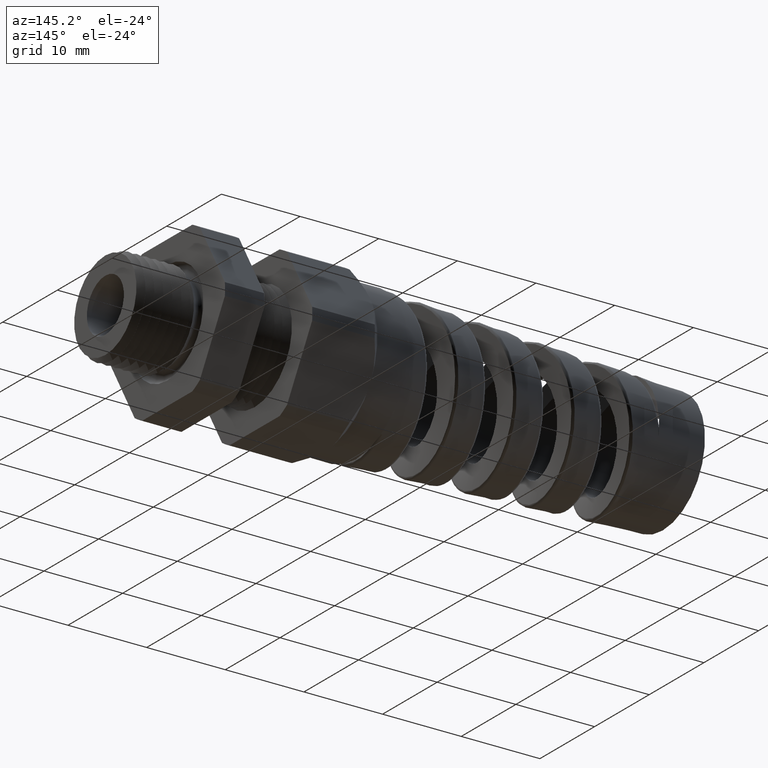
[diagram: clean part render]
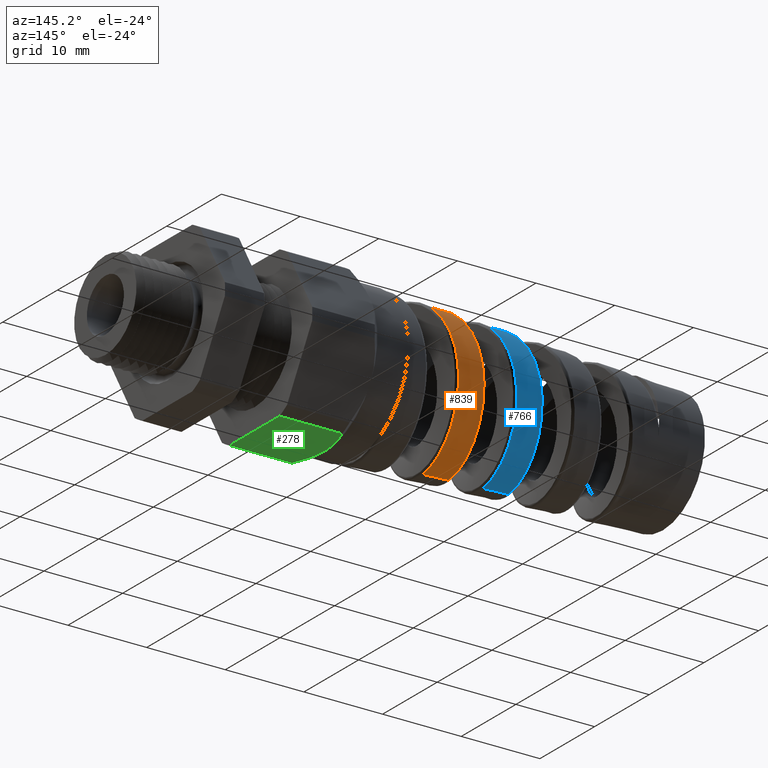
[diagram: same view with three faces highlighted in distinct colors, each labeled with its STEP entity id]
A machine part, auxiliary view with three faces highlighted in distinct colors.
Their STEP definitions:

[orange] entity #839 — the highlighted conical surface has half-angle 2.5 deg.
#724 = ORIENTED_EDGE ( 'NONE', *, *, #725, .F. ) ;
#725 = EDGE_CURVE ( 'NONE', #758, #765, #3755, .T. ) ;
#757 = EDGE_CURVE ( 'NONE', #758, #759, #4062, .T. ) ;
#758 = VERTEX_POINT ( 'NONE', #4063 ) ;
#759 = VERTEX_POINT ( 'NONE', #4061 ) ;
#760 = ORIENTED_EDGE ( 'NONE', *, *, #761, .T. ) ;
#761 = EDGE_CURVE ( 'NONE', #759, #762, #4090, .T. ) ;
#762 = VERTEX_POINT ( 'NONE', #4086 ) ;
#763 = ORIENTED_EDGE ( 'NONE', *, *, #764, .T. ) ;
#764 = EDGE_CURVE ( 'NONE', #762, #765, #4084, .T. ) ;
#765 = VERTEX_POINT ( 'NONE', #4085 ) ;
#839 = ADVANCED_FACE ( 'NONE', ( #4864 ), #4863, .T. ) ;
#2425 = EDGE_LOOP ( 'NONE', ( #2433, #760, #763, #724 ) ) ;
#2433 = ORIENTED_EDGE ( 'NONE', *, *, #757, .T. ) ;
#3752 = DIRECTION ( 'NONE',  ( 0.9990482215818576900, 0.0000000000000000000, -0.04361938736533633300 ) ) ;
#3753 = VECTOR ( 'NONE', #3752, 39.37007874015748100 ) ;
#3754 = CARTESIAN_POINT ( 'NONE',  ( -1.180000000000000200, 0.0000000000000000000, -0.3749999999999998900 ) ) ;
#3755 = LINE ( 'NONE', #3754, #3753 ) ;
#4024 = CARTESIAN_POINT ( 'NONE',  ( -1.604147893780293500, 0.2338172558347930400, 0.2693404331094431100 ) ) ;
#4025 = CARTESIAN_POINT ( 'NONE',  ( -1.605721216048483700, 0.2425195046639780900, 0.2614367780492804500 ) ) ;
#4026 = CARTESIAN_POINT ( 'NONE',  ( -1.610392708829689400, 0.2671403516514382300, 0.2367708489926975100 ) ) ;
#4027 = CARTESIAN_POINT ( 'NONE',  ( -1.613476527588962700, 0.2817921087589174700, 0.2189054725787847300 ) ) ;
#4028 = CARTESIAN_POINT ( 'NONE',  ( -1.619699037266636900, 0.3075780309592522900, 0.1803572852362077300 ) ) ;
#4029 = CARTESIAN_POINT ( 'NONE',  ( -1.622854178591123500, 0.3187187214157414200, 0.1595339356799256300 ) ) ;
#4030 = CARTESIAN_POINT ( 'NONE',  ( -1.629071130742905500, 0.3364525652290325500, 0.1167876846685824000 ) ) ;
#4031 = CARTESIAN_POINT ( 'NONE',  ( -1.632164444724165900, 0.3432037702774299300, 0.09467427533722602700 ) ) ;
#4032 = CARTESIAN_POINT ( 'NONE',  ( -1.636868573642309000, 0.3500755290649887300, 0.06037774012640090300 ) ) ;
#4033 = CARTESIAN_POINT ( 'NONE',  ( -1.638447458985908600, 0.3518113751857160900, 0.04875535143475849500 ) ) ;
#4034 = CARTESIAN_POINT ( 'NONE',  ( -1.641572646514079900, 0.3541100399417093100, 0.02564277945374624300 ) ) ;
#4035 = CARTESIAN_POINT ( 'NONE',  ( -1.644682859707485600, 0.3552653384320944600, 0.002534627666650163700 ) ) ;
#4036 = CARTESIAN_POINT ( 'NONE',  ( -1.647793175832474600, 0.3541690054110135400, -0.02056081550544203200 ) ) ;
#4037 = CARTESIAN_POINT ( 'NONE',  ( -1.650918321443378000, 0.3519326016737611100, -0.04364782446324842100 ) ) ;
#4038 = CARTESIAN_POINT ( 'NONE',  ( -1.652495516895215600, 0.3502334056776490500, -0.05523960647628437000 ) ) ;
#4039 = CARTESIAN_POINT ( 'NONE',  ( -1.657219973263941700, 0.3434330805194905100, -0.08962050805081689400 ) ) ;
#4040 = CARTESIAN_POINT ( 'NONE',  ( -1.660324942667615900, 0.3367204747142228900, -0.1117596298250717700 ) ) ;
#4041 = CARTESIAN_POINT ( 'NONE',  ( -1.665005324710368000, 0.3234829986014105000, -0.1438192937010352200 ) ) ;
#4042 = CARTESIAN_POINT ( 'NONE',  ( -1.666569213791856000, 0.3185386575106921600, -0.1543129962118505700 ) ) ;
#4043 = CARTESIAN_POINT ( 'NONE',  ( -1.669720118696005300, 0.3075571257400741000, -0.1749019068166757800 ) ) ;
#4044 = CARTESIAN_POINT ( 'NONE',  ( -1.671304139590971300, 0.3015238728173140200, -0.1849732283598679900 ) ) ;
#4045 = CARTESIAN_POINT ( 'NONE',  ( -1.676009269265843500, 0.2821813670299173600, -0.2139259612820533000 ) ) ;
#4046 = CARTESIAN_POINT ( 'NONE',  ( -1.679117299167546700, 0.2675260900090148400, -0.2317850491694549400 ) ) ;
#4047 = CARTESIAN_POINT ( 'NONE',  ( -1.683825790574334300, 0.2429092140344732700, -0.2563991360274479000 ) ) ;
#4048 = CARTESIAN_POINT ( 'NONE',  ( -1.685411440288008700, 0.2342124388088229800, -0.2642775364565413400 ) ) ;
#4049 = CARTESIAN_POINT ( 'NONE',  ( -1.688570329350134600, 0.2161543224802713000, -0.2790664033881412600 ) ) ;
#4050 = CARTESIAN_POINT ( 'NONE',  ( -1.690139146020161100, 0.2068234628638122300, -0.2859614697338894200 ) ) ;
#4051 = CARTESIAN_POINT ( 'NONE',  ( -1.694837000180716700, 0.1779524039044960400, -0.3051872133115012300 ) ) ;
#4052 = CARTESIAN_POINT ( 'NONE',  ( -1.697956518764234500, 0.1575419747460493900, -0.3160724069036295900 ) ) ;
#4053 = CARTESIAN_POINT ( 'NONE',  ( -1.702707313402982900, 0.1251366926315660700, -0.3294034699245522200 ) ) ;
#4054 = CARTESIAN_POINT ( 'NONE',  ( -1.704294449409094800, 0.1140907247310741600, -0.3333142832549930200 ) ) ;
#4055 = CARTESIAN_POINT ( 'NONE',  ( -1.707440761081074200, 0.09187106767978173200, -0.3399677803163271800 ) ) ;
#4056 = CARTESIAN_POINT ( 'NONE',  ( -1.710574065489524700, 0.06942184339197458900, -0.3454964340501229800 ) ) ;
#4057 = CARTESIAN_POINT ( 'NONE',  ( -1.713712007224771300, 0.04652281420144591100, -0.3488004104802778200 ) ) ;
#4058 = CARTESIAN_POINT ( 'NONE',  ( -1.716867252393302200, 0.02339703866211573600, -0.3509726424273854600 ) ) ;
#4059 = CARTESIAN_POINT ( 'NONE',  ( -1.718462336193793400, 0.01165469891359113300, -0.3514902266810592800 ) ) ;
#4060 = CARTESIAN_POINT ( 'NONE',  ( -1.720046289923344600, 5.261405270794163700E-017, -0.3514210697677028200 ) ) ;
#4061 = CARTESIAN_POINT ( 'NONE',  ( -1.570004112519413100, 7.800708568290530000E-013, 0.3579720527092047400 ) ) ;
#4062 = B_SPLINE_CURVE_WITH_KNOTS ( 'NONE', 3,
 ( #4060, #4059, #4058, #4057, #4056, #4055, #4054, #4053, #4052, #4051, #4050, #4049, #4048, #4047, #4046, #4045, #4044, #4043, #4042, #4041, #4040, #4039, #4038, #4037, #4036, #4035, #4034, #4033, #4032, #4031, #4030, #4029, #4028, #4027, #4026, #4025, #4024, #4102, #4101, #4100, #4099, #4098, #4097, #4096, #4095, #4094, #4093, #4092, #4091 ),
 .UNSPECIFIED., .F., .F.,
 ( 4, 2, 1, 2, 2, 2, 2, 2, 2, 2, 2, 2, 2, 1, 2, 2, 2, 2, 2, 2, 2, 2, 2, 1, 2, 4 ),
 ( 0.1504759072502974400, 0.1513760892187639400, 0.1522762711872304400, 0.1531764531556969500, 0.1540766351241634500, 0.1558769990610964200, 0.1567771810295629200, 0.1576773629980294200, 0.1594777269349624300, 0.1603779089034289000, 0.1612780908718954000, 0.1630784548088284000, 0.1639786367772948800, 0.1648788187457613800, 0.1657790007142278800, 0.1666791826826943800, 0.1684795466196273600, 0.1702799105565603600, 0.1720802744934933600, 0.1729804564619598600, 0.1738806384304263700, 0.1756810023673593400, 0.1765811843358258700, 0.1774813663042923400, 0.1783815482727588400, 0.1792817302412253500 ),
 .UNSPECIFIED. ) ;
#4063 = CARTESIAN_POINT ( 'NONE',  ( -1.720046289923344600, 5.261405270794163700E-017, -0.3514210697677028200 ) ) ;
#4065 = CARTESIAN_POINT ( 'NONE',  ( -1.497440788334635500, 0.3419403546582955900, 0.1185490441899818800 ) ) ;
#4066 = CARTESIAN_POINT ( 'NONE',  ( -1.491217231977695300, 0.3238952573567211400, 0.1620656680095650700 ) ) ;
#4067 = CARTESIAN_POINT ( 'NONE',  ( -1.488062759736407800, 0.3125670429981283700, 0.1832301605975566500 ) ) ;
#4068 = CARTESIAN_POINT ( 'NONE',  ( -1.481853649059393400, 0.2864160791439732100, 0.2223361875655257600 ) ) ;
#4069 = CARTESIAN_POINT ( 'NONE',  ( -1.478769385462156900, 0.2715287160771441300, 0.2405091759068495000 ) ) ;
#4070 = CARTESIAN_POINT ( 'NONE',  ( -1.474087033771445600, 0.2464348408856798800, 0.2656498454025513800 ) ) ;
#4071 = CARTESIAN_POINT ( 'NONE',  ( -1.472514153371623100, 0.2375860485180825200, 0.2736820288598511000 ) ) ;
#4072 = CARTESIAN_POINT ( 'NONE',  ( -1.469402776941181300, 0.2193413100916917500, 0.2886811490979059900 ) ) ;
#4073 = CARTESIAN_POINT ( 'NONE',  ( -1.467855771100278000, 0.2099016159167325600, 0.2956958584193908900 ) ) ;
#4074 = CARTESIAN_POINT ( 'NONE',  ( -1.463218403051158600, 0.1806501942844020200, 0.3153101385052023400 ) ) ;
#4075 = CARTESIAN_POINT ( 'NONE',  ( -1.460120873452529300, 0.1598368339697834900, 0.3265258404606378700 ) ) ;
#4076 = CARTESIAN_POINT ( 'NONE',  ( -1.453867363587885400, 0.1159625879989283300, 0.3448445848721811100 ) ) ;
#4077 = CARTESIAN_POINT ( 'NONE',  ( -1.450790426804472500, 0.09347047862549987000, 0.3517281581911576000 ) ) ;
#4078 = CARTESIAN_POINT ( 'NONE',  ( -1.446161247252001100, 0.05894068186143738800, 0.3587594865962086000 ) ) ;
#4079 = CARTESIAN_POINT ( 'NONE',  ( -1.444615957833764700, 0.04729786568232322700, 0.3605503712581145700 ) ) ;
#4080 = CARTESIAN_POINT ( 'NONE',  ( -1.441506045452874300, 0.02374203397426115700, 0.3629995748980564000 ) ) ;
#4081 = CARTESIAN_POINT ( 'NONE',  ( -1.439938880628758500, 0.01180939826937906300, 0.3636508233731851100 ) ) ;
#4082 = CARTESIAN_POINT ( 'NONE',  ( -1.438388834159843900, -6.242012121605520200E-013, 0.3637184998635499300 ) ) ;
#4084 = B_SPLINE_CURVE_WITH_KNOTS ( 'NONE', 3,
 ( #4082, #4081, #4080, #4079, #4078, #4077, #4076, #4075, #4074, #4073, #4072, #4071, #4070, #4069, #4068, #4067, #4066, #4065, #4139, #4138, #4137, #4136, #4135, #4134, #4133, #4132, #4131, #4130, #4129, #4128, #4127, #4126, #4125, #4124, #4123, #4122, #4121, #4120, #4119, #4118, #4117, #4116, #4115, #4114 ),
 .UNSPECIFIED., .F., .F.,
 ( 4, 2, 2, 2, 2, 2, 2, 2, 2, 2, 2, 2, 2, 2, 2, 2, 2, 2, 2, 2, 2, 4 ),
 ( 0.03422901946826646000, 0.03513469259537486300, 0.03604036572248327200, 0.03785171197670007800, 0.03966305823091688400, 0.04056873135802528700, 0.04147440448513369000, 0.04328575073935050900, 0.04509709699356732200, 0.04690844324778413500, 0.04781411637489253700, 0.04871978950200094700, 0.05053113575621776000, 0.05234248201043456600, 0.05324815513754297500, 0.05415382826465137800, 0.05596517451886818400, 0.05777652077308499000, 0.05958786702730180200, 0.06049354015441020500, 0.06139921328151860800, 0.06321055953573541400 ),
 .UNSPECIFIED. ) ;
#4085 = CARTESIAN_POINT ( 'NONE',  ( -1.588346511975844600, -2.085652025635772500E-015, -0.3571712062537323900 ) ) ;
#4086 = CARTESIAN_POINT ( 'NONE',  ( -1.438388834159843900, -6.242012121605520200E-013, 0.3637184998635499300 ) ) ;
#4087 = DIRECTION ( 'NONE',  ( 0.9990482215818576900, 5.341834311772764100E-018, 0.04361938736533633300 ) ) ;
#4088 = VECTOR ( 'NONE', #4087, 39.37007874015748100 ) ;
#4089 = CARTESIAN_POINT ( 'NONE',  ( -1.180000000000000200, 4.592425496802573000E-017, 0.3749999999999998900 ) ) ;
#4090 = LINE ( 'NONE', #4089, #4088 ) ;
#4091 = CARTESIAN_POINT ( 'NONE',  ( -1.570004112519413100, 7.800708568290530000E-013, 0.3579720527092047400 ) ) ;
#4092 = CARTESIAN_POINT ( 'NONE',  ( -1.571559338679266100, 0.01165663843734122300, 0.3579041500686050400 ) ) ;
#4093 = CARTESIAN_POINT ( 'NONE',  ( -1.573126315279760800, 0.02339468312784817600, 0.3572591004366506000 ) ) ;
#4094 = CARTESIAN_POINT ( 'NONE',  ( -1.576227774028205600, 0.04650505937238288300, 0.3548545658279131400 ) ) ;
#4095 = CARTESIAN_POINT ( 'NONE',  ( -1.579313976895375700, 0.06937930689968885300, 0.3513393868235398200 ) ) ;
#4096 = CARTESIAN_POINT ( 'NONE',  ( -1.582399133055027100, 0.09178512056537238600, 0.3456396033915942700 ) ) ;
#4097 = CARTESIAN_POINT ( 'NONE',  ( -1.585498230953778000, 0.1139521376532170300, 0.3388354243744096100 ) ) ;
#4098 = CARTESIAN_POINT ( 'NONE',  ( -1.587060504874283200, 0.1249559212781043600, 0.3348643115576440700 ) ) ;
#4099 = CARTESIAN_POINT ( 'NONE',  ( -1.591751491076328900, 0.1573223665262857300, 0.3213434215824619300 ) ) ;
#4100 = CARTESIAN_POINT ( 'NONE',  ( -1.594832988440560300, 0.1776967954526449100, 0.3103664786667592600 ) ) ;
#4101 = CARTESIAN_POINT ( 'NONE',  ( -1.599474924126295100, 0.2065023079533514800, 0.2910581303585755800 ) ) ;
#4102 = CARTESIAN_POINT ( 'NONE',  ( -1.601025405380726200, 0.2158094113502530600, 0.2841448457145627800 ) ) ;
#4114 = CARTESIAN_POINT ( 'NONE',  ( -1.588346511975844600, -2.085652025635772500E-015, -0.3571712062537323900 ) ) ;
#4115 = CARTESIAN_POINT ( 'NONE',  ( -1.585169181315703600, 0.02377166712461402400, -0.3573099315062864300 ) ) ;
#4116 = CARTESIAN_POINT ( 'NONE',  ( -1.582028668462522200, 0.04729785536105812800, -0.3550809733742521000 ) ) ;
#4117 = CARTESIAN_POINT ( 'NONE',  ( -1.577328279619481900, 0.08186630961105467700, -0.3483544939175768400 ) ) ;
#4118 = CARTESIAN_POINT ( 'NONE',  ( -1.575760720703284400, 0.09328825189997848300, -0.3455444800079025000 ) ) ;
#4119 = CARTESIAN_POINT ( 'NONE',  ( -1.572608544978106400, 0.1159245629934294900, -0.3387678619265835900 ) ) ;
#4120 = CARTESIAN_POINT ( 'NONE',  ( -1.571015949933437100, 0.1271930102533077000, -0.3347749287901653500 ) ) ;
#4121 = CARTESIAN_POINT ( 'NONE',  ( -1.566283233025535400, 0.1600146907585137100, -0.3212715836482453200 ) ) ;
#4122 = CARTESIAN_POINT ( 'NONE',  ( -1.563168722711705300, 0.1807434547613579200, -0.3102310593030121500 ) ) ;
#4123 = CARTESIAN_POINT ( 'NONE',  ( -1.556901118047824900, 0.2199220663174416000, -0.2841512754313991800 ) ) ;
#4124 = CARTESIAN_POINT ( 'NONE',  ( -1.553721162009381800, 0.2384963666016795300, -0.2689366455550846200 ) ) ;
#4125 = CARTESIAN_POINT ( 'NONE',  ( -1.547458914128967900, 0.2717888858843948200, -0.2356574877859848000 ) ) ;
#4126 = CARTESIAN_POINT ( 'NONE',  ( -1.544351127692614700, 0.2866970856463352800, -0.2175117369082662200 ) ) ;
#4127 = CARTESIAN_POINT ( 'NONE',  ( -1.539636867151503900, 0.3064088959745048800, -0.1880118146451330900 ) ) ;
#4128 = CARTESIAN_POINT ( 'NONE',  ( -1.538050642368709000, 0.3125510389929414500, -0.1777534886742070700 ) ) ;
#4129 = CARTESIAN_POINT ( 'NONE',  ( -1.534911843621319400, 0.3236764084854391000, -0.1568966332655909700 ) ) ;
#4130 = CARTESIAN_POINT ( 'NONE',  ( -1.533351937879140500, 0.3286939452352635200, -0.1462544825224101600 ) ) ;
#4131 = CARTESIAN_POINT ( 'NONE',  ( -1.528677631559787200, 0.3421433471800954800, -0.1137027203410202100 ) ) ;
#4132 = CARTESIAN_POINT ( 'NONE',  ( -1.525562895256547400, 0.3489960631327122000, -0.09113051746796957400 ) ) ;
#4133 = CARTESIAN_POINT ( 'NONE',  ( -1.519254090160249100, 0.3582258164783068100, -0.04444815125261744600 ) ) ;
#4134 = CARTESIAN_POINT ( 'NONE',  ( -1.516152231120669900, 0.3604751305930762900, -0.02102835590693004700 ) ) ;
#4135 = CARTESIAN_POINT ( 'NONE',  ( -1.511487405751688100, 0.3604384368302846500, 0.01420299083478664600 ) ) ;
#4136 = CARTESIAN_POINT ( 'NONE',  ( -1.509930555254504100, 0.3598536451725704600, 0.02596385295872231900 ) ) ;
#4137 = CARTESIAN_POINT ( 'NONE',  ( -1.506797787402672800, 0.3575127249512332600, 0.04951850025917333600 ) ) ;
#4138 = CARTESIAN_POINT ( 'NONE',  ( -1.505217933007637000, 0.3557443106118515800, 0.06134039084634913100 ) ) ;
#4139 = CARTESIAN_POINT ( 'NONE',  ( -1.500529897932170600, 0.3487838961025361800, 0.09608735467626373900 ) ) ;
#4858 = DIRECTION ( 'NONE',  ( 0.0000000000000000000, 0.0000000000000000000, -1.000000000000000000 ) ) ;
#4859 = DIRECTION ( 'NONE',  ( 1.000000000000000000, 0.0000000000000000000, 0.0000000000000000000 ) ) ;
#4860 = CARTESIAN_POINT ( 'NONE',  ( -1.180000000000000200, 0.0000000000000000000, 0.0000000000000000000 ) ) ;
#4861 = AXIS2_PLACEMENT_3D ( 'NONE', #4860, #4859, #4858 ) ;
#4863 = CONICAL_SURFACE ( 'NONE', #4861, 0.3749999999999998900, 0.04363323129985857000 ) ;
#4864 = FACE_OUTER_BOUND ( 'NONE', #2425, .T. ) ;

[blue] entity #766 — the highlighted conical surface has half-angle 2.5 deg.
#766 = ADVANCED_FACE ( 'NONE', ( #4083 ), #4113, .T. ) ;
#767 = ORIENTED_EDGE ( 'NONE', *, *, #768, .T. ) ;
#768 = EDGE_CURVE ( 'NONE', #793, #794, #4106, .T. ) ;
#773 = EDGE_LOOP ( 'NONE', ( #767, #819, #822, #837 ) ) ;
#793 = VERTEX_POINT ( 'NONE', #4387 ) ;
#794 = VERTEX_POINT ( 'NONE', #4459 ) ;
#819 = ORIENTED_EDGE ( 'NONE', *, *, #820, .T. ) ;
#820 = EDGE_CURVE ( 'NONE', #794, #821, #4685, .T. ) ;
#821 = VERTEX_POINT ( 'NONE', #4681 ) ;
#822 = ORIENTED_EDGE ( 'NONE', *, *, #835, .T. ) ;
#835 = EDGE_CURVE ( 'NONE', #821, #836, #4742, .T. ) ;
#836 = VERTEX_POINT ( 'NONE', #4743 ) ;
#837 = ORIENTED_EDGE ( 'NONE', *, *, #838, .F. ) ;
#838 = EDGE_CURVE ( 'NONE', #793, #836, #4783, .T. ) ;
#4083 = FACE_OUTER_BOUND ( 'NONE', #773, .T. ) ;
#4103 = CARTESIAN_POINT ( 'NONE',  ( -2.013855819544707600, 0.04446832936202906700, -0.3364096283747499100 ) ) ;
#4104 = CARTESIAN_POINT ( 'NONE',  ( -2.016982179081261400, 0.02229813155987315700, -0.3384565688637354300 ) ) ;
#4105 = CARTESIAN_POINT ( 'NONE',  ( -2.020129990126204000, -6.806968735707664300E-013, -0.3383191324653706500 ) ) ;
#4106 = B_SPLINE_CURVE_WITH_KNOTS ( 'NONE', 3,
 ( #4105, #4104, #4103, #4188, #4187, #4186, #4185, #4184, #4183, #4182, #4181, #4180, #4179, #4178, #4177, #4176, #4175, #4174, #4173, #4172, #4171, #4170, #4169, #4168, #4167, #4166, #4165, #4164, #4163, #4162, #4161, #4160, #4159, #4158, #4157, #4156, #4155, #4154, #4153, #4152, #4151, #4150, #4149, #4148, #4147, #4146, #4145, #4144, #4143, #4142, #4141, #4140 ),
 .UNSPECIFIED., .F., .F.,
 ( 4, 2, 2, 2, 2, 2, 2, 2, 2, 2, 2, 2, 2, 2, 2, 2, 2, 2, 2, 2, 2, 2, 2, 2, 2, 4 ),
 ( 0.09444105053058422800, 0.09617593787425353400, 0.09704338154608818700, 0.09791082521792283900, 0.09877826888975749200, 0.09964571256159214500, 0.1013805999052614500, 0.1022480435770961000, 0.1031154872489307600, 0.1048503745926000800, 0.1057178182644347300, 0.1065852619362693800, 0.1083201492799387000, 0.1091875929517733500, 0.1100550366236080100, 0.1109224802954426600, 0.1117899239672773100, 0.1135248113109466300, 0.1143922549827812900, 0.1152596986546159400, 0.1169945859982852400, 0.1178620296701199100, 0.1187294733419545600, 0.1204643606856238800, 0.1213318043574585500, 0.1221992480292932000 ),
 .UNSPECIFIED. ) ;
#4109 = DIRECTION ( 'NONE',  ( 0.0000000000000000000, 0.0000000000000000000, -1.000000000000000000 ) ) ;
#4110 = DIRECTION ( 'NONE',  ( 1.000000000000000000, 0.0000000000000000000, 0.0000000000000000000 ) ) ;
#4111 = CARTESIAN_POINT ( 'NONE',  ( -1.180000000000000200, 0.0000000000000000000, 0.0000000000000000000 ) ) ;
#4112 = AXIS2_PLACEMENT_3D ( 'NONE', #4111, #4110, #4109 ) ;
#4113 = CONICAL_SURFACE ( 'NONE', #4112, 0.3749999999999998900, 0.04363323129985857000 ) ;
#4140 = CARTESIAN_POINT ( 'NONE',  ( -1.870088254621574200, 1.372455858012838600E-016, 0.3448700961131323500 ) ) ;
#4141 = CARTESIAN_POINT ( 'NONE',  ( -1.871629383344239200, 0.01112822930955137700, 0.3448028089799572400 ) ) ;
#4142 = CARTESIAN_POINT ( 'NONE',  ( -1.873170796155300600, 0.02225220639051467300, 0.3441981300261857700 ) ) ;
#4143 = CARTESIAN_POINT ( 'NONE',  ( -1.876268349415466400, 0.04448956854802550700, 0.3418990559768271300 ) ) ;
#4144 = CARTESIAN_POINT ( 'NONE',  ( -1.877832308297816600, 0.05565821495901147900, 0.3401925524395933400 ) ) ;
#4145 = CARTESIAN_POINT ( 'NONE',  ( -1.882510542633464100, 0.08872499830948756000, 0.3334599624527548900 ) ) ;
#4146 = CARTESIAN_POINT ( 'NONE',  ( -1.885587573730803200, 0.1100206110728644400, 0.3268957925425811100 ) ) ;
#4147 = CARTESIAN_POINT ( 'NONE',  ( -1.890226864814565700, 0.1408604870689656700, 0.3140256179597536400 ) ) ;
#4148 = CARTESIAN_POINT ( 'NONE',  ( -1.891776918703717200, 0.1509552953087822900, 0.3092280651536134500 ) ) ;
#4149 = CARTESIAN_POINT ( 'NONE',  ( -1.894899632818215900, 0.1707621732032996700, 0.2985900447869097600 ) ) ;
#4150 = CARTESIAN_POINT ( 'NONE',  ( -1.896468818300314000, 0.1804489654147048400, 0.2927549464441148700 ) ) ;
#4151 = CARTESIAN_POINT ( 'NONE',  ( -1.901130221618127800, 0.2083043940781415000, 0.2740652538169889900 ) ) ;
#4152 = CARTESIAN_POINT ( 'NONE',  ( -1.904210038392670800, 0.2254937176863075800, 0.2599274501383169700 ) ) ;
#4153 = CARTESIAN_POINT ( 'NONE',  ( -1.908875923336268200, 0.2491969348690165900, 0.2362117159492128600 ) ) ;
#4154 = CARTESIAN_POINT ( 'NONE',  ( -1.910446777474284600, 0.2567842049826133400, 0.2278409182691867300 ) ) ;
#4155 = CARTESIAN_POINT ( 'NONE',  ( -1.913578740339856100, 0.2710496254373897000, 0.2104468934991906000 ) ) ;
#4156 = CARTESIAN_POINT ( 'NONE',  ( -1.915133972751450000, 0.2777043976072398100, 0.2014623853617416600 ) ) ;
#4157 = CARTESIAN_POINT ( 'NONE',  ( -1.919789714298783200, 0.2962728365143572100, 0.1736726912281495200 ) ) ;
#4158 = CARTESIAN_POINT ( 'NONE',  ( -1.922879712126769800, 0.3068036162747040400, 0.1540390114997546600 ) ) ;
#4159 = CARTESIAN_POINT ( 'NONE',  ( -1.927583869936822000, 0.3197412636970924900, 0.1228907661033862600 ) ) ;
#4160 = CARTESIAN_POINT ( 'NONE',  ( -1.929159385594097200, 0.3235558035712659500, 0.1122485645958305100 ) ) ;
#4161 = CARTESIAN_POINT ( 'NONE',  ( -1.932280070739770300, 0.3300603842653001000, 0.09085694182701084500 ) ) ;
#4162 = CARTESIAN_POINT ( 'NONE',  ( -1.933833384801542300, 0.3327744737939975500, 0.08005255841376217300 ) ) ;
#4163 = CARTESIAN_POINT ( 'NONE',  ( -1.936940854223744300, 0.3371402368795071200, 0.05823157463501123200 ) ) ;
#4164 = CARTESIAN_POINT ( 'NONE',  ( -1.938494951634066600, 0.3387919167872417400, 0.04721496724638361100 ) ) ;
#4165 = CARTESIAN_POINT ( 'NONE',  ( -1.941618523350367100, 0.3410169512185451400, 0.02496843580670459600 ) ) ;
#4166 = CARTESIAN_POINT ( 'NONE',  ( -1.943196330555655000, 0.3415892794406694100, 0.01367872988418971500 ) ) ;
#4167 = CARTESIAN_POINT ( 'NONE',  ( -1.947911455534967500, 0.3416239085071003400, -0.02005019732475371600 ) ) ;
#4168 = CARTESIAN_POINT ( 'NONE',  ( -1.951013459388146100, 0.3394473788540212600, -0.04222232285441612100 ) ) ;
#4169 = CARTESIAN_POINT ( 'NONE',  ( -1.955691914639906800, 0.3329700208547266000, -0.07500995422553122200 ) ) ;
#4170 = CARTESIAN_POINT ( 'NONE',  ( -1.957255455334293100, 0.3302717110645923000, -0.08586021797826283400 ) ) ;
#4171 = CARTESIAN_POINT ( 'NONE',  ( -1.960406307370184300, 0.3237648222295275200, -0.1073959920505350600 ) ) ;
#4172 = CARTESIAN_POINT ( 'NONE',  ( -1.961986563051783400, 0.3199646724507819200, -0.1180316191719489500 ) ) ;
#4173 = CARTESIAN_POINT ( 'NONE',  ( -1.966684092625106400, 0.3071484836630650700, -0.1490083093129386500 ) ) ;
#4174 = CARTESIAN_POINT ( 'NONE',  ( -1.969789512684549500, 0.2966686725327154500, -0.1686411870626466900 ) ) ;
#4175 = CARTESIAN_POINT ( 'NONE',  ( -1.974497747871218500, 0.2780405295247769200, -0.1965462798035270100 ) ) ;
#4176 = CARTESIAN_POINT ( 'NONE',  ( -1.976084168417382200, 0.2713016080325054700, -0.2056365607058287200 ) ) ;
#4177 = CARTESIAN_POINT ( 'NONE',  ( -1.979238563416602800, 0.2570398515824050500, -0.2229972473912390500 ) ) ;
#4178 = CARTESIAN_POINT ( 'NONE',  ( -1.980805479885231900, 0.2495287184070458000, -0.2312659615977234500 ) ) ;
#4179 = CARTESIAN_POINT ( 'NONE',  ( -1.985498079107943700, 0.2258856919333886700, -0.2548663642071565800 ) ) ;
#4180 = CARTESIAN_POINT ( 'NONE',  ( -1.988615191295253200, 0.2086546924920540900, -0.2690038485360569100 ) ) ;
#4181 = CARTESIAN_POINT ( 'NONE',  ( -1.993366454561087400, 0.1805375707863327800, -0.2877235224643547300 ) ) ;
#4182 = CARTESIAN_POINT ( 'NONE',  ( -1.994950636878070900, 0.1708546019413308100, -0.2934932860252752500 ) ) ;
#4183 = CARTESIAN_POINT ( 'NONE',  ( -1.998094145462152100, 0.1511293758671576300, -0.3039677041136230100 ) ) ;
#4184 = CARTESIAN_POINT ( 'NONE',  ( -1.999659591356263800, 0.1410502357799552400, -0.3086972795466905200 ) ) ;
#4185 = CARTESIAN_POINT ( 'NONE',  ( -2.002793283384356900, 0.1204652726415915600, -0.3171505857474119000 ) ) ;
#4186 = CARTESIAN_POINT ( 'NONE',  ( -2.004361366648077500, 0.1099594392497147400, -0.3208743511260212500 ) ) ;
#4187 = CARTESIAN_POINT ( 'NONE',  ( -2.007515299714150100, 0.08851518747806169700, -0.3272967198754571600 ) ) ;
#4188 = CARTESIAN_POINT ( 'NONE',  ( -2.009109829080315100, 0.07751563821956043700, -0.3300043313486809000 ) ) ;
#4387 = CARTESIAN_POINT ( 'NONE',  ( -2.020129990126204000, -6.806968735707664300E-013, -0.3383191324653706500 ) ) ;
#4459 = CARTESIAN_POINT ( 'NONE',  ( -1.870088254621574200, 1.372455858012838600E-016, 0.3448700961131323500 ) ) ;
#4681 = CARTESIAN_POINT ( 'NONE',  ( -1.738304391068078900, -4.833561772024687300E-013, 0.3506239038560047300 ) ) ;
#4682 = DIRECTION ( 'NONE',  ( 0.9990482215818576900, 5.341834311772764100E-018, 0.04361938736533633300 ) ) ;
#4683 = VECTOR ( 'NONE', #4682, 39.37007874015748100 ) ;
#4684 = CARTESIAN_POINT ( 'NONE',  ( -1.180000000000000200, 4.592425496802573000E-017, 0.3749999999999998900 ) ) ;
#4685 = LINE ( 'NONE', #4684, #4683 ) ;
#4739 = CARTESIAN_POINT ( 'NONE',  ( -1.744466423409643900, 0.04523232728382748500, 0.3481667798925049400 ) ) ;
#4740 = CARTESIAN_POINT ( 'NONE',  ( -1.741397807297412300, 0.02271980059239096100, 0.3504888423866549000 ) ) ;
#4741 = CARTESIAN_POINT ( 'NONE',  ( -1.738304391068078900, -4.833561772024687300E-013, 0.3506239038560047300 ) ) ;
#4742 = B_SPLINE_CURVE_WITH_KNOTS ( 'NONE', 3,
 ( #4741, #4740, #4739, #4828, #4827, #4826, #4825, #4824, #4823, #4822, #4821, #4820, #4819, #4818, #4817, #4816, #4815, #4814, #4813, #4812, #4811, #4810, #4809, #4808, #4807, #4806, #4805, #4804, #4803, #4802, #4801, #4800, #4799, #4798, #4797, #4796, #4795, #4794, #4793, #4792, #4791, #4790, #4789, #4788, #4787, #4786, #4785, #4784 ),
 .UNSPECIFIED., .F., .F.,
 ( 4, 2, 2, 2, 2, 2, 2, 2, 2, 2, 2, 2, 2, 2, 2, 2, 2, 2, 2, 2, 2, 2, 2, 4 ),
 ( 0.09167172191532414700, 0.09341816604162742100, 0.09429138810477905000, 0.09516461016793069400, 0.09691105429423396700, 0.09778427635738561100, 0.09865749842053724000, 0.09953072048368888400, 0.1004039425468405300, 0.1021503866731438000, 0.1030236087362954300, 0.1038968307994470700, 0.1056432749257503500, 0.1065164969889019900, 0.1073897190520536300, 0.1091361631783569100, 0.1108826073046601800, 0.1117558293678118100, 0.1126290514309634500, 0.1143754955572667300, 0.1161219396835700100, 0.1178683838098732900, 0.1187416058730249300, 0.1196148279361765600 ),
 .UNSPECIFIED. ) ;
#4743 = CARTESIAN_POINT ( 'NONE',  ( -1.888262487446381800, 6.759720700862851200E-013, -0.3440765919713624800 ) ) ;
#4780 = DIRECTION ( 'NONE',  ( 0.9990482215818576900, 0.0000000000000000000, -0.04361938736533633300 ) ) ;
#4781 = VECTOR ( 'NONE', #4780, 39.37007874015748100 ) ;
#4782 = CARTESIAN_POINT ( 'NONE',  ( -1.180000000000000200, 0.0000000000000000000, -0.3749999999999998900 ) ) ;
#4783 = LINE ( 'NONE', #4782, #4781 ) ;
#4784 = CARTESIAN_POINT ( 'NONE',  ( -1.888262487446381800, 6.759720700862851200E-013, -0.3440765919713624800 ) ) ;
#4785 = CARTESIAN_POINT ( 'NONE',  ( -1.886692563298294500, 0.01131522083528003000, -0.3441451363399406500 ) ) ;
#4786 = CARTESIAN_POINT ( 'NONE',  ( -1.885121716477075500, 0.02264573057063802200, -0.3436569173424091600 ) ) ;
#4787 = CARTESIAN_POINT ( 'NONE',  ( -1.881962397465148000, 0.04533575226020609300, -0.3415443681750432400 ) ) ;
#4788 = CARTESIAN_POINT ( 'NONE',  ( -1.880367207638052900, 0.05674315077604429000, -0.3399060138104056400 ) ) ;
#4789 = CARTESIAN_POINT ( 'NONE',  ( -1.875631012290842200, 0.09029780667794654000, -0.3333679875198671300 ) ) ;
#4790 = CARTESIAN_POINT ( 'NONE',  ( -1.872512304314613500, 0.1119761765578789900, -0.3268616854382208100 ) ) ;
#4791 = CARTESIAN_POINT ( 'NONE',  ( -1.866230974966530200, 0.1539538606118380500, -0.3096201089755678500 ) ) ;
#4792 = CARTESIAN_POINT ( 'NONE',  ( -1.863045423323431900, 0.1743839558382770900, -0.2987507904633889800 ) ) ;
#4793 = CARTESIAN_POINT ( 'NONE',  ( -1.856776719130452900, 0.2121228124574459900, -0.2735959332938882600 ) ) ;
#4794 = CARTESIAN_POINT ( 'NONE',  ( -1.853665020926351200, 0.2296432197662200100, -0.2592584287799697400 ) ) ;
#4795 = CARTESIAN_POINT ( 'NONE',  ( -1.848939995138356900, 0.2538559784290537200, -0.2350752377263689900 ) ) ;
#4796 = CARTESIAN_POINT ( 'NONE',  ( -1.847351462933093200, 0.2615929785478354800, -0.2265387274972758800 ) ) ;
#4797 = CARTESIAN_POINT ( 'NONE',  ( -1.844209343477063000, 0.2760304868287991000, -0.2089324460824210900 ) ) ;
#4798 = CARTESIAN_POINT ( 'NONE',  ( -1.842647563948008900, 0.2827762193542023300, -0.1998219551511950800 ) ) ;
#4799 = CARTESIAN_POINT ( 'NONE',  ( -1.837966768472526900, 0.3016192569055025600, -0.1715883771791697500 ) ) ;
#4800 = CARTESIAN_POINT ( 'NONE',  ( -1.834842049696672600, 0.3123672970654306500, -0.1514950406561857100 ) ) ;
#4801 = CARTESIAN_POINT ( 'NONE',  ( -1.828530923558607600, 0.3298535411154497300, -0.1091407291225007400 ) ) ;
#4802 = CARTESIAN_POINT ( 'NONE',  ( -1.825424698696810300, 0.3363815029519607900, -0.08743219153520134800 ) ) ;
#4803 = CARTESIAN_POINT ( 'NONE',  ( -1.820752041794418300, 0.3429662157479537700, -0.05411206527212053500 ) ) ;
#4804 = CARTESIAN_POINT ( 'NONE',  ( -1.819192172106977700, 0.3446227408309571200, -0.04287824118151532100 ) ) ;
#4805 = CARTESIAN_POINT ( 'NONE',  ( -1.816052960523275400, 0.3468319988894015800, -0.02015207135637900700 ) ) ;
#4806 = CARTESIAN_POINT ( 'NONE',  ( -1.814472420480625300, 0.3473769566945612600, -0.008650781861539278900 ) ) ;
#4807 = CARTESIAN_POINT ( 'NONE',  ( -1.809782550403795400, 0.3473137430859418700, 0.02548286221084682100 ) ) ;
#4808 = CARTESIAN_POINT ( 'NONE',  ( -1.806689417440076700, 0.3450567558750496900, 0.04800082001331582700 ) ) ;
#4809 = CARTESIAN_POINT ( 'NONE',  ( -1.802012195857230400, 0.3383718172512776300, 0.08141137272202732300 ) ) ;
#4810 = CARTESIAN_POINT ( 'NONE',  ( -1.800440659686865200, 0.3355754557522593300, 0.09253220504280157400 ) ) ;
#4811 = CARTESIAN_POINT ( 'NONE',  ( -1.797300082813419400, 0.3288977644306050900, 0.1144324530674066300 ) ) ;
#4812 = CARTESIAN_POINT ( 'NONE',  ( -1.795742115020099600, 0.3250449889044992300, 0.1251358971287039900 ) ) ;
#4813 = CARTESIAN_POINT ( 'NONE',  ( -1.791082199859416400, 0.3119931837474709300, 0.1565260410694993800 ) ) ;
#4814 = CARTESIAN_POINT ( 'NONE',  ( -1.787994406840645300, 0.3013143674668623000, 0.1764992002847350900 ) ) ;
#4815 = CARTESIAN_POINT ( 'NONE',  ( -1.783301751760995300, 0.2822675608904047800, 0.2049848252159442200 ) ) ;
#4816 = CARTESIAN_POINT ( 'NONE',  ( -1.781727838662595700, 0.2754059004439881600, 0.2142246151565293500 ) ) ;
#4817 = CARTESIAN_POINT ( 'NONE',  ( -1.778614385775588300, 0.2609650144177078600, 0.2318031169891045200 ) ) ;
#4818 = CARTESIAN_POINT ( 'NONE',  ( -1.777066032085153500, 0.2533517426730245700, 0.2401960157173416200 ) ) ;
#4819 = CARTESIAN_POINT ( 'NONE',  ( -1.773971203515414300, 0.2373537494820271400, 0.2562005948305801100 ) ) ;
#4820 = CARTESIAN_POINT ( 'NONE',  ( -1.772424846151323700, 0.2289690047254089600, 0.2638122745887784300 ) ) ;
#4821 = CARTESIAN_POINT ( 'NONE',  ( -1.769319546228935700, 0.2114206050659246700, 0.2782440276659263700 ) ) ;
#4822 = CARTESIAN_POINT ( 'NONE',  ( -1.767753671537594800, 0.2022143652885681200, 0.2850920184324711200 ) ) ;
#4823 = CARTESIAN_POINT ( 'NONE',  ( -1.763063119206973200, 0.1736866197045676700, 0.3041991969701787800 ) ) ;
#4824 = CARTESIAN_POINT ( 'NONE',  ( -1.759982845820191600, 0.1537076550491321400, 0.3148987107477390600 ) ) ;
#4825 = CARTESIAN_POINT ( 'NONE',  ( -1.755347119184258900, 0.1223552349633189500, 0.3279837060733472000 ) ) ;
#4826 = CARTESIAN_POINT ( 'NONE',  ( -1.753799305038340300, 0.1116721457361031100, 0.3318478543321968200 ) ) ;
#4827 = CARTESIAN_POINT ( 'NONE',  ( -1.750683838108475900, 0.08983123912402497800, 0.3385546280587752900 ) ) ;
#4828 = CARTESIAN_POINT ( 'NONE',  ( -1.749116959584448900, 0.07867705782214606800, 0.3413877565839735200 ) ) ;

[green] entity #278 — the highlighted planar face has unit normal (0, 0, -1).
#191 = VERTEX_POINT ( 'NONE', #1204 ) ;
#270 = EDGE_CURVE ( 'NONE', #271, #272, #2698, .T. ) ;
#271 = VERTEX_POINT ( 'NONE', #2694 ) ;
#272 = VERTEX_POINT ( 'NONE', #2693 ) ;
#278 = ADVANCED_FACE ( 'NONE', ( #2682 ), #2681, .T. ) ;
#279 = EDGE_LOOP ( 'NONE', ( #280, #340, #342, #344, #345 ) ) ;
#280 = ORIENTED_EDGE ( 'NONE', *, *, #281, .T. ) ;
#281 = EDGE_CURVE ( 'NONE', #282, #283, #2676, .T. ) ;
#282 = VERTEX_POINT ( 'NONE', #2672 ) ;
#283 = VERTEX_POINT ( 'NONE', #2671 ) ;
#340 = ORIENTED_EDGE ( 'NONE', *, *, #341, .T. ) ;
#341 = EDGE_CURVE ( 'NONE', #283, #191, #2845, .T. ) ;
#342 = ORIENTED_EDGE ( 'NONE', *, *, #343, .T. ) ;
#343 = EDGE_CURVE ( 'NONE', #191, #272, #2837, .T. ) ;
#344 = ORIENTED_EDGE ( 'NONE', *, *, #270, .F. ) ;
#345 = ORIENTED_EDGE ( 'NONE', *, *, #346, .F. ) ;
#346 = EDGE_CURVE ( 'NONE', #282, #271, #2838, .T. ) ;
#1204 = CARTESIAN_POINT ( 'NONE',  ( -1.101259842519685100, 0.0000000000000000000, -0.3750000000000002200 ) ) ;
#2671 = CARTESIAN_POINT ( 'NONE',  ( -1.060009842519685100, -0.1806628420566881200, -0.3750000000000002200 ) ) ;
#2672 = CARTESIAN_POINT ( 'NONE',  ( -0.7469291338582678700, -0.1806628420566881700, -0.3750000000000002200 ) ) ;
#2673 = DIRECTION ( 'NONE',  ( -1.000000000000000000, 0.0000000000000000000, 0.0000000000000000000 ) ) ;
#2674 = VECTOR ( 'NONE', #2673, 39.37007874015748100 ) ;
#2675 = CARTESIAN_POINT ( 'NONE',  ( 0.0000000000000000000, -0.1806628420566881700, -0.3750000000000002200 ) ) ;
#2676 = LINE ( 'NONE', #2675, #2674 ) ;
#2677 = DIRECTION ( 'NONE',  ( -1.000000000000000000, 0.0000000000000000000, 0.0000000000000000000 ) ) ;
#2678 = DIRECTION ( 'NONE',  ( 0.0000000000000000000, 0.0000000000000000000, -1.000000000000000000 ) ) ;
#2679 = CARTESIAN_POINT ( 'NONE',  ( 0.0000000000000000000, 0.1806628420566881700, -0.3750000000000002200 ) ) ;
#2680 = AXIS2_PLACEMENT_3D ( 'NONE', #2679, #2678, #2677 ) ;
#2681 = PLANE ( 'NONE',  #2680 ) ;
#2682 = FACE_OUTER_BOUND ( 'NONE', #279, .T. ) ;
#2693 = CARTESIAN_POINT ( 'NONE',  ( -1.060009842519685100, 0.1806628420566880600, -0.3750000000000001700 ) ) ;
#2694 = CARTESIAN_POINT ( 'NONE',  ( -0.7469291338582678700, 0.1806628420566880900, -0.3750000000000002200 ) ) ;
#2695 = DIRECTION ( 'NONE',  ( -1.000000000000000000, 0.0000000000000000000, 0.0000000000000000000 ) ) ;
#2696 = VECTOR ( 'NONE', #2695, 39.37007874015748100 ) ;
#2697 = CARTESIAN_POINT ( 'NONE',  ( 0.0000000000000000000, 0.1806628420566880900, -0.3750000000000002200 ) ) ;
#2698 = LINE ( 'NONE', #2697, #2696 ) ;
#2826 = VECTOR ( 'NONE', #2835, 39.37007874015748100 ) ;
#2827 = CARTESIAN_POINT ( 'NONE',  ( -1.060009842519685100, 0.1806628420566880600, -0.3750000000000001700 ) ) ;
#2828 = CARTESIAN_POINT ( 'NONE',  ( -1.072355950625391200, 0.1522172168218785300, -0.3750000000000002800 ) ) ;
#2829 = CARTESIAN_POINT ( 'NONE',  ( -1.082851130204389900, 0.1224785947535360100, -0.3750000000000002800 ) ) ;
#2830 = CARTESIAN_POINT ( 'NONE',  ( -1.093656741541191100, 0.07729185397029247900, -0.3750000000000002800 ) ) ;
#2831 = CARTESIAN_POINT ( 'NONE',  ( -1.096463228670860900, 0.06207756443688113700, -0.3750000000000002200 ) ) ;
#2832 = CARTESIAN_POINT ( 'NONE',  ( -1.100265542944419700, 0.03130286613836869000, -0.3750000000000002200 ) ) ;
#2833 = CARTESIAN_POINT ( 'NONE',  ( -1.101259842519684500, 0.01568637131276646300, -0.3750000000000002200 ) ) ;
#2834 = CARTESIAN_POINT ( 'NONE',  ( -1.101259842519685100, 0.0000000000000000000, -0.3750000000000002200 ) ) ;
#2835 = DIRECTION ( 'NONE',  ( 0.0000000000000000000, 1.000000000000000000, 0.0000000000000000000 ) ) ;
#2836 = CARTESIAN_POINT ( 'NONE',  ( -0.7469291338582678700, 0.2695000000000000200, -0.3750000000000002200 ) ) ;
#2837 = B_SPLINE_CURVE_WITH_KNOTS ( 'NONE', 3,
 ( #2834, #2833, #2832, #2831, #2830, #2829, #2828, #2827 ),
 .UNSPECIFIED., .F., .F.,
 ( 4, 2, 2, 4 ),
 ( 0.01136407599362879000, 0.01253729531775339900, 0.01371051464187800600, 0.01605695329012722300 ),
 .UNSPECIFIED. ) ;
#2838 = LINE ( 'NONE', #2836, #2826 ) ;
#2839 = CARTESIAN_POINT ( 'NONE',  ( -1.101259842519685100, 0.0000000000000000000, -0.3750000000000002200 ) ) ;
#2840 = CARTESIAN_POINT ( 'NONE',  ( -1.101259842519684900, -0.03141195411055312100, -0.3750000000000002800 ) ) ;
#2841 = CARTESIAN_POINT ( 'NONE',  ( -1.097277624240405400, -0.06212512060126240700, -0.3750000000000002200 ) ) ;
#2842 = CARTESIAN_POINT ( 'NONE',  ( -1.082870866840956800, -0.1224209746056494900, -0.3750000000000002200 ) ) ;
#2843 = CARTESIAN_POINT ( 'NONE',  ( -1.072360682911190000, -0.1522063135617428300, -0.3750000000000002200 ) ) ;
#2844 = CARTESIAN_POINT ( 'NONE',  ( -1.060009842519685100, -0.1806628420566881200, -0.3750000000000002200 ) ) ;
#2845 = B_SPLINE_CURVE_WITH_KNOTS ( 'NONE', 3,
 ( #2844, #2843, #2842, #2841, #2840, #2839 ),
 .UNSPECIFIED., .F., .F.,
 ( 4, 2, 4 ),
 ( 0.006665333265152969700, 0.009014704629390879800, 0.01136407599362879000 ),
 .UNSPECIFIED. ) ;